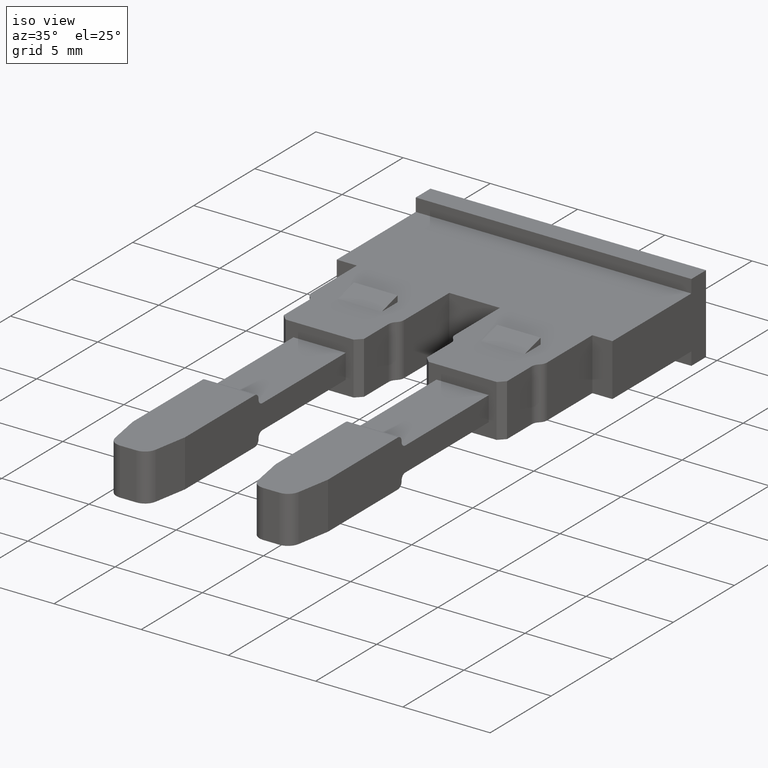
[diagram: clean part render]
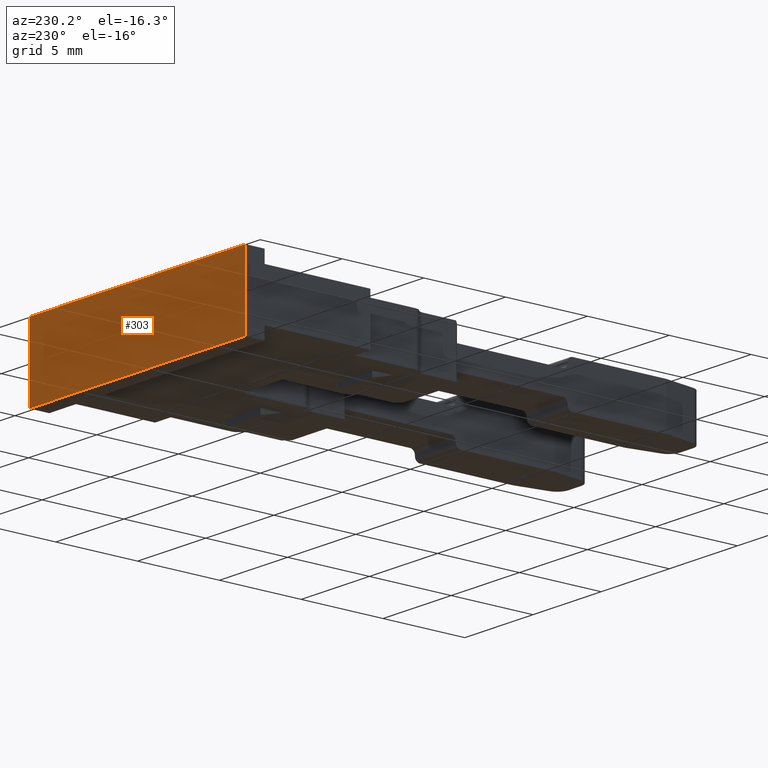
[diagram: tour spotlight — one face highlighted and labeled with its STEP entity id]
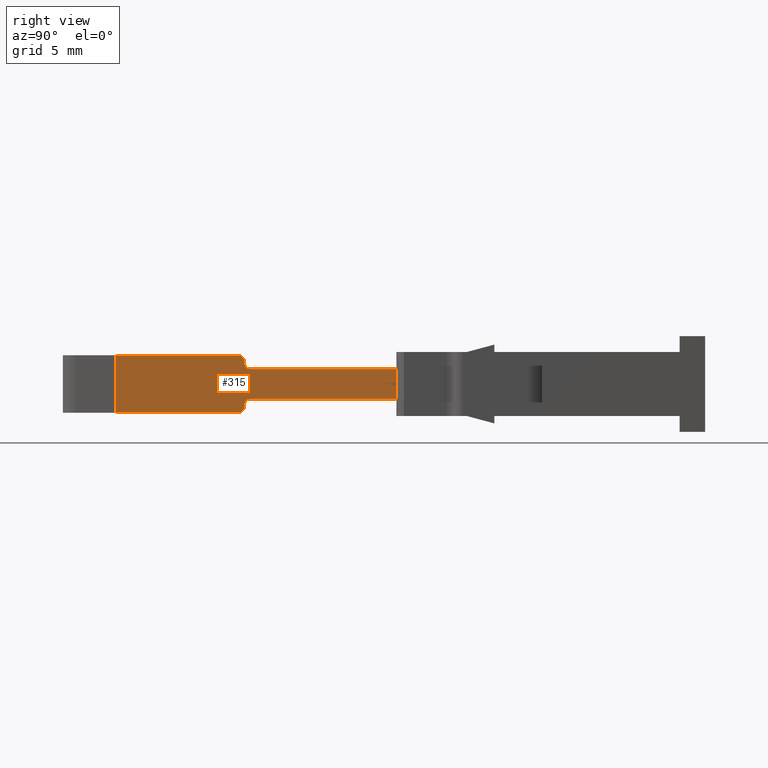
[diagram: tour spotlight — one face highlighted and labeled with its STEP entity id]
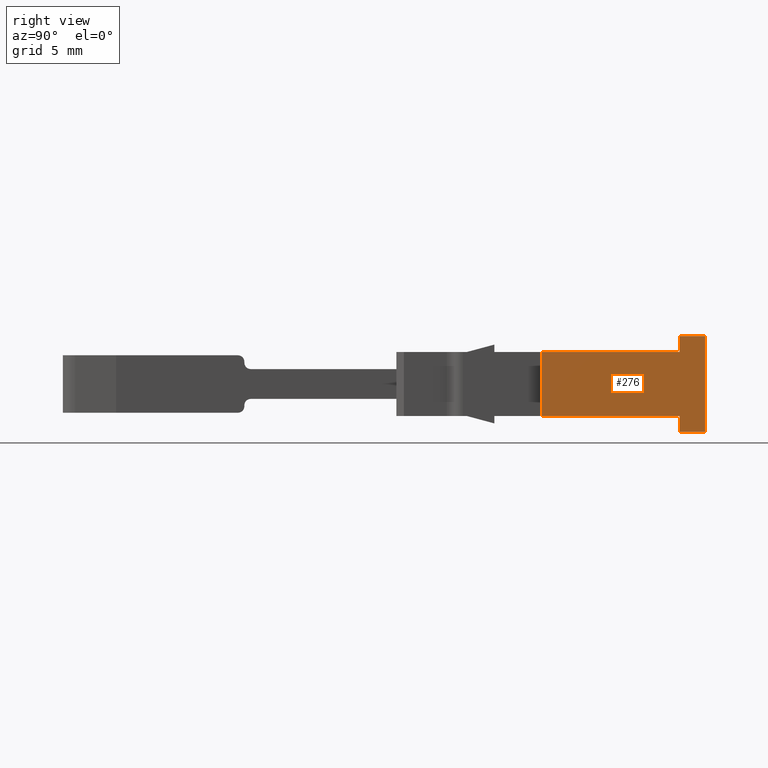
[diagram: tour spotlight — one face highlighted and labeled with its STEP entity id]
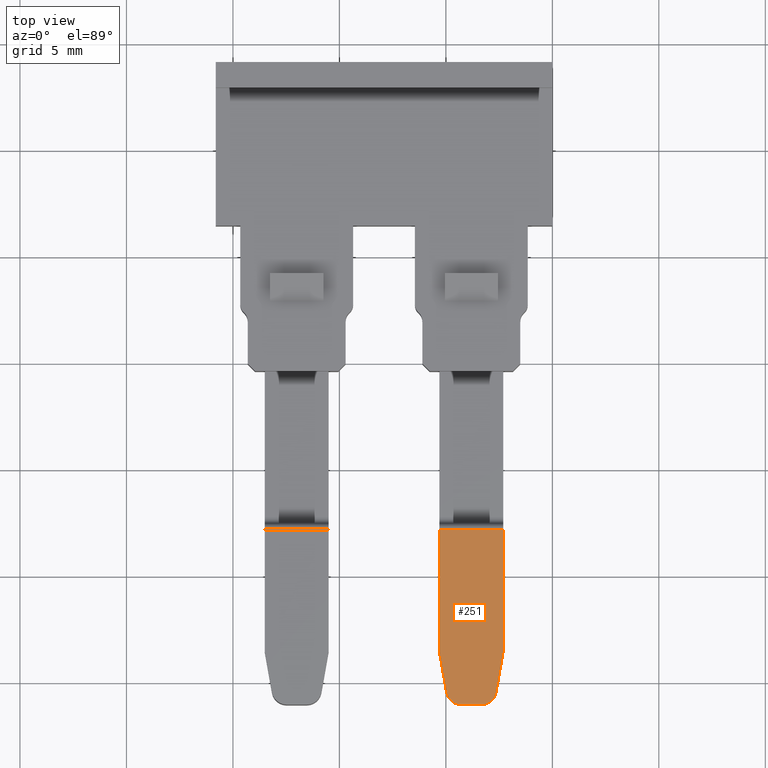
[diagram: tour spotlight — one face highlighted and labeled with its STEP entity id]
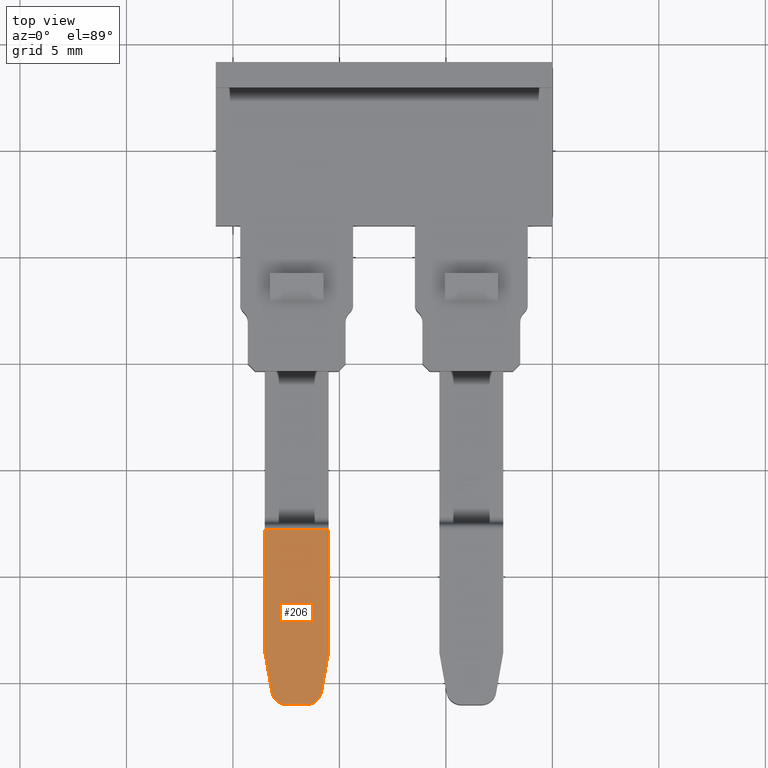
[diagram: tour spotlight — one face highlighted and labeled with its STEP entity id]
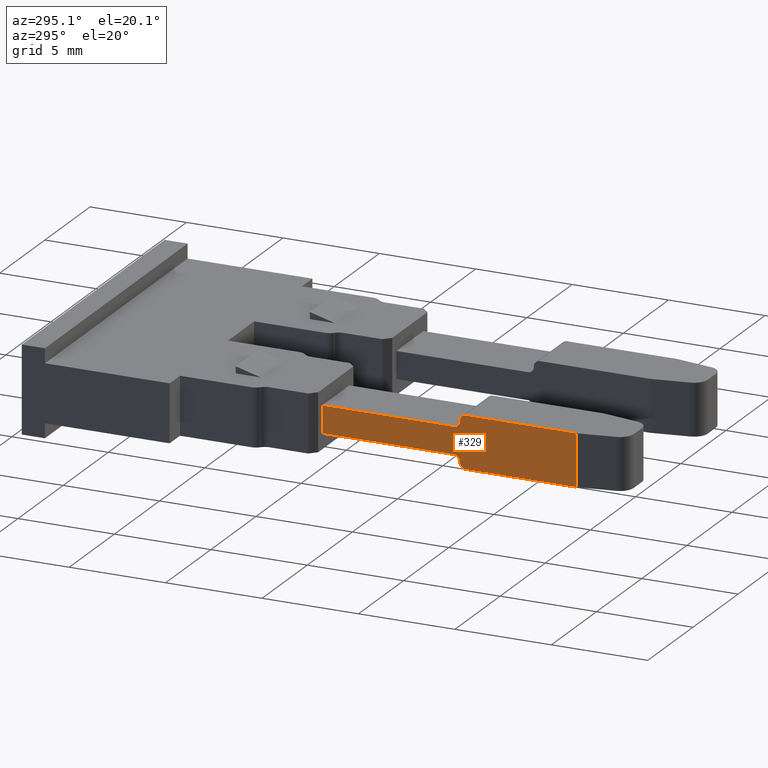
[diagram: tour spotlight — one face highlighted and labeled with its STEP entity id]
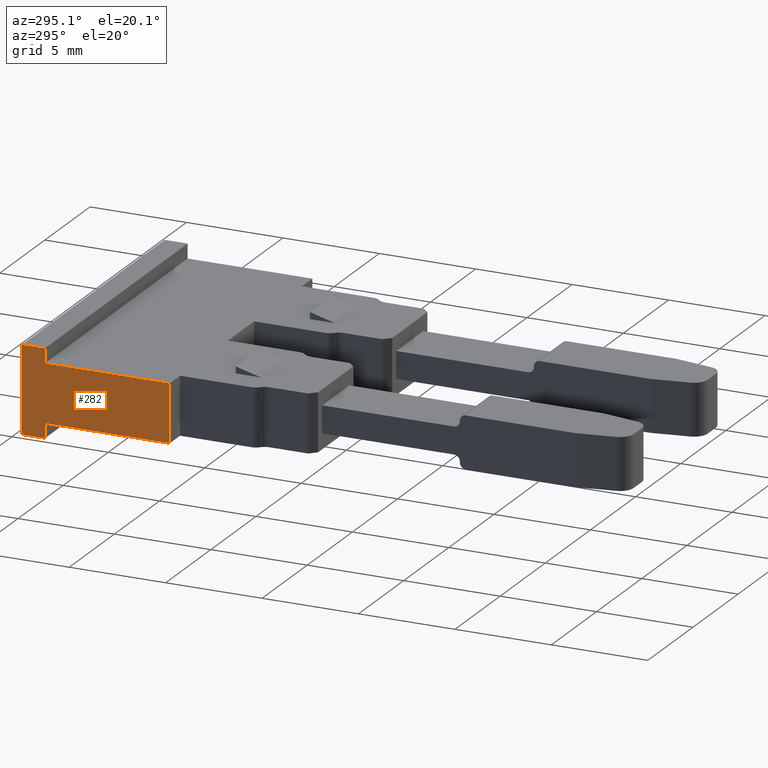
[diagram: tour spotlight — one face highlighted and labeled with its STEP entity id]
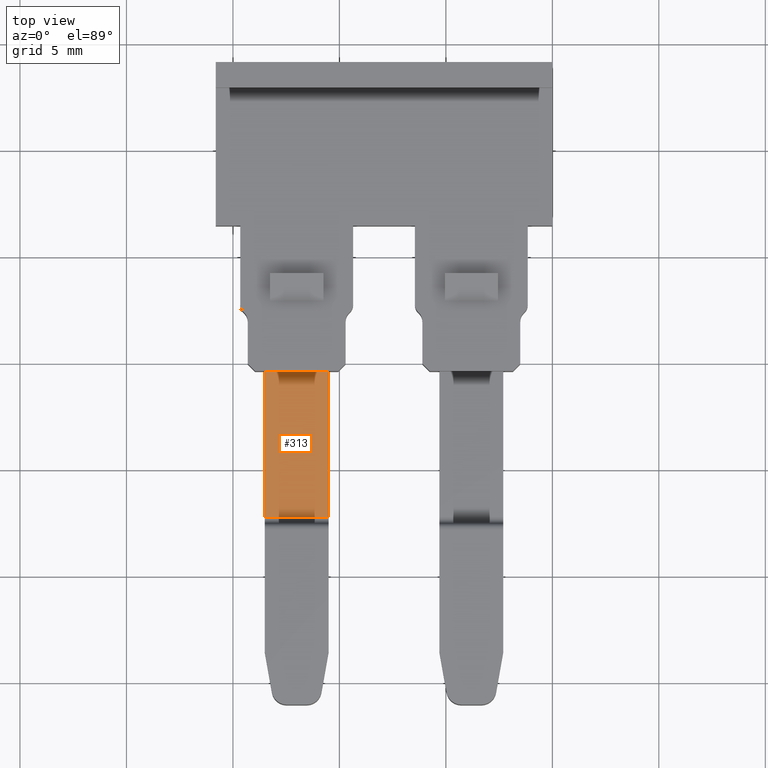
[diagram: tour spotlight — one face highlighted and labeled with its STEP entity id]
A machine part: a face-by-face anatomy tour. The part has 88 B-rep faces; the first image is the clean iso view, then the 8 largest visible faces are spotlighted one at a time (largest first), each with its STEP entity span.

Face 1 — auxiliary view, entity #303. In plain terms, the highlighted planar face has unit normal (0, -1, 0).
Definition (entity closure, byte-faithful):
#86 = EDGE_CURVE ( 'NONE', #2694, #2678, #691, .T. ) ;
#127 = EDGE_CURVE ( 'NONE', #2694, #2636, #850, .T. ) ;
#161 = EDGE_CURVE ( 'NONE', #2639, #2636, #935, .T. ) ;
#181 = EDGE_CURVE ( 'NONE', #2639, #2678, #968, .T. ) ;
#303 = ADVANCED_FACE ( 'NONE', ( #360 ), #344, .F. ) ;
#344 = PLANE ( 'NONE',  #1804 ) ;
#360 = FACE_OUTER_BOUND ( 'NONE', #2531, .T. ) ;
#384 = CARTESIAN_POINT ( 'NONE',  ( 1139.194470802330000, 674.1078760720547500, 3.000000000000000000 ) ) ;
#385 = DIRECTION ( 'NONE',  ( 0.0000000000000000000, -0.0000000000000000000, -1.000000000000000000 ) ) ;
#393 = DIRECTION ( 'NONE',  ( 0.0000000000000000000, -1.000000000000000000, 0.0000000000000000000 ) ) ;
#510 = CARTESIAN_POINT ( 'NONE',  ( 1139.194470802330000, 674.1078760720547500, -0.7499999999999997800 ) ) ;
#550 = CARTESIAN_POINT ( 'NONE',  ( 1154.994472239529600, 674.1078760720547500, -0.7499999999999997800 ) ) ;
#583 = CARTESIAN_POINT ( 'NONE',  ( 1154.994472239529600, 674.1078760720547500, 3.750000000000000000 ) ) ;
#615 = CARTESIAN_POINT ( 'NONE',  ( 1139.194470802330000, 674.1078760720547500, 3.750000000000000000 ) ) ;
#691 = LINE ( 'NONE', #714, #1509 ) ;
#705 = DIRECTION ( 'NONE',  ( -1.000000000000000000, -0.0000000000000000000, -0.0000000000000000000 ) ) ;
#714 = CARTESIAN_POINT ( 'NONE',  ( 1139.194470802330000, 674.1078760720547500, 3.750000000000000000 ) ) ;
#832 = CARTESIAN_POINT ( 'NONE',  ( 1154.994472239529600, 674.1078760720547500, 3.000000000000000000 ) ) ;
#834 = DIRECTION ( 'NONE',  ( -0.0000000000000000000, -0.0000000000000000000, -1.000000000000000000 ) ) ;
#850 = LINE ( 'NONE', #832, #1621 ) ;
#907 = DIRECTION ( 'NONE',  ( 1.000000000000000000, 0.0000000000000000000, 0.0000000000000000000 ) ) ;
#935 = LINE ( 'NONE', #937, #1672 ) ;
#937 = CARTESIAN_POINT ( 'NONE',  ( 1139.194470802330000, 674.1078760720547500, -0.7499999999999997800 ) ) ;
#968 = LINE ( 'NONE', #990, #1652 ) ;
#969 = DIRECTION ( 'NONE',  ( -0.0000000000000000000, -0.0000000000000000000, 1.000000000000000000 ) ) ;
#990 = CARTESIAN_POINT ( 'NONE',  ( 1139.194470802330000, 674.1078760720547500, 3.000000000000000000 ) ) ;
#1509 = VECTOR ( 'NONE', #705, 1000.000000000000000 ) ;
#1621 = VECTOR ( 'NONE', #834, 1000.000000000000000 ) ;
#1652 = VECTOR ( 'NONE', #969, 1000.000000000000000 ) ;
#1672 = VECTOR ( 'NONE', #907, 1000.000000000000000 ) ;
#1804 = AXIS2_PLACEMENT_3D ( 'NONE', #384, #393, #385 ) ;
#2236 = ORIENTED_EDGE ( 'NONE', *, *, #86, .F. ) ;
#2252 = ORIENTED_EDGE ( 'NONE', *, *, #127, .T. ) ;
#2255 = ORIENTED_EDGE ( 'NONE', *, *, #181, .T. ) ;
#2265 = ORIENTED_EDGE ( 'NONE', *, *, #161, .F. ) ;
#2531 = EDGE_LOOP ( 'NONE', ( #2265, #2255, #2236, #2252 ) ) ;
#2636 = VERTEX_POINT ( 'NONE', #550 ) ;
#2639 = VERTEX_POINT ( 'NONE', #510 ) ;
#2678 = VERTEX_POINT ( 'NONE', #615 ) ;
#2694 = VERTEX_POINT ( 'NONE', #583 ) ;

Face 2 — right view, entity #315. In plain terms, the highlighted planar face has unit normal (-1, -0, -0).
Definition (entity closure, byte-faithful):
#6 = EDGE_CURVE ( 'NONE', #2578, #2624, #1487, .T. ) ;
#48 = EDGE_CURVE ( 'NONE', #2690, #2624, #1931, .T. ) ;
#53 = EDGE_CURVE ( 'NONE', #2614, #2584, #1508, .T. ) ;
#89 = EDGE_CURVE ( 'NONE', #2686, #2637, #710, .T. ) ;
#93 = EDGE_CURVE ( 'NONE', #2606, #2690, #1589, .T. ) ;
#103 = EDGE_CURVE ( 'NONE', #2584, #2686, #756, .T. ) ;
#114 = EDGE_CURVE ( 'NONE', #2661, #2585, #1599, .T. ) ;
#117 = EDGE_CURVE ( 'NONE', #2637, #2578, #770, .T. ) ;
#120 = EDGE_CURVE ( 'NONE', #2614, #2661, #782, .T. ) ;
#124 = EDGE_CURVE ( 'NONE', #2585, #2587, #810, .T. ) ;
#125 = EDGE_CURVE ( 'NONE', #2635, #2606, #854, .T. ) ;
#128 = EDGE_CURVE ( 'NONE', #2635, #2587, #773, .T. ) ;
#315 = ADVANCED_FACE ( 'NONE', ( #434 ), #405, .F. ) ;
#405 = PLANE ( 'NONE',  #1796 ) ;
#413 = DIRECTION ( 'NONE',  ( -0.9999999999997435400, -7.162730294145294800E-007, -5.364441115149939300E-014 ) ) ;
#428 = CARTESIAN_POINT ( 'NONE',  ( 1152.694513078971600, 633.9904998856812900, 1.500000000000050400 ) ) ;
#434 = FACE_OUTER_BOUND ( 'NONE', #2530, .T. ) ;
#447 = DIRECTION ( 'NONE',  ( 7.162730294145293700E-007, -0.9999999999997434300, 0.0000000000000000000 ) ) ;
#503 = CARTESIAN_POINT ( 'NONE',  ( 1152.694494728928900, 659.6092820011524500, 2.199999999999997100 ) ) ;
#509 = CARTESIAN_POINT ( 'NONE',  ( 1152.694500057496300, 652.1699856249198300, 2.847804784774985900 ) ) ;
#519 = CARTESIAN_POINT ( 'NONE',  ( 1152.694500057496500, 652.1699856249251800, 0.1522013187407402500 ) ) ;
#525 = CARTESIAN_POINT ( 'NONE',  ( 1152.694497994798000, 659.6092820011524500, 0.8000061035156753600 ) ) ;
#540 = CARTESIAN_POINT ( 'NONE',  ( 1152.694499842614300, 652.4699856249416100, 2.547804784775004700 ) ) ;
#544 = CARTESIAN_POINT ( 'NONE',  ( 1152.694494728928900, 652.7699856250221700, 2.200000000000050400 ) ) ;
#549 = CARTESIAN_POINT ( 'NONE',  ( 1152.694499627732700, 652.7699856249647600, 0.8000061035156751400 ) ) ;
#562 = CARTESIAN_POINT ( 'NONE',  ( 1152.694499842614500, 652.4699856249416100, 0.4522013187406444000 ) ) ;
#564 = CARTESIAN_POINT ( 'NONE',  ( 1152.694502719367600, 646.4455650513607500, 2.847804784775002300 ) ) ;
#577 = CARTESIAN_POINT ( 'NONE',  ( 1152.694502762740300, 646.4455652973382500, 0.1522013187407222600 ) ) ;
#587 = CARTESIAN_POINT ( 'NONE',  ( 1152.694499842614300, 652.4699856249416100, 2.500000000000054200 ) ) ;
#626 = CARTESIAN_POINT ( 'NONE',  ( 1152.694499842614500, 652.4699856249416100, 0.5000061035156794200 ) ) ;
#673 = CARTESIAN_POINT ( 'NONE',  ( 1152.694504157744400, 646.4455650513617700, 1.500000000000050400 ) ) ;
#674 = DIRECTION ( 'NONE',  ( -5.364441115148562900E-014, -3.842404488664303600E-020, 1.000000000000000000 ) ) ;
#692 = DIRECTION ( 'NONE',  ( 7.162729668644273000E-007, -0.9999999999997435400, 0.0000000000000000000 ) ) ;
#696 = CARTESIAN_POINT ( 'NONE',  ( 1152.694499627732500, 652.7699856249647600, 2.500000000000050600 ) ) ;
#701 = DIRECTION ( 'NONE',  ( -0.9999999999997435400, -7.162730294145294800E-007, -5.364441115149939900E-014 ) ) ;
#710 = LINE ( 'NONE', #673, #1601 ) ;
#733 = DIRECTION ( 'NONE',  ( 7.162730294145293700E-007, -0.9999999999997434300, 0.0000000000000000000 ) ) ;
#742 = CARTESIAN_POINT ( 'NONE',  ( 1152.694513078971600, 633.9904998856812900, 0.1522013187407241500 ) ) ;
#756 = LINE ( 'NONE', #742, #1590 ) ;
#768 = CARTESIAN_POINT ( 'NONE',  ( 1152.694499627732700, 641.3475629657206100, 0.8000061035156751400 ) ) ;
#770 = LINE ( 'NONE', #778, #1561 ) ;
#771 = CARTESIAN_POINT ( 'NONE',  ( 1152.694499627732700, 652.7699856249647600, 0.5000061035156752000 ) ) ;
#773 = LINE ( 'NONE', #812, #1562 ) ;
#774 = DIRECTION ( 'NONE',  ( -1.259368144656452000E-037, 1.000000000000000000, 2.347622273454535600E-024 ) ) ;
#778 = CARTESIAN_POINT ( 'NONE',  ( 1152.694513078971600, 633.9904998856812900, 2.847804784775002800 ) ) ;
#782 = LINE ( 'NONE', #806, #1587 ) ;
#784 = DIRECTION ( 'NONE',  ( -7.385219485357330600E-024, -6.294261101327853900E-019, 1.000000000000000000 ) ) ;
#796 = DIRECTION ( 'NONE',  ( -7.162730294145293700E-007, 0.9999999999997434300, -0.0000000000000000000 ) ) ;
#797 = DIRECTION ( 'NONE',  ( -0.9999999999997435400, -7.162730294145294800E-007, -5.364441115149939900E-014 ) ) ;
#804 = DIRECTION ( 'NONE',  ( 7.162729668644273000E-007, -0.9999999999997435400, 0.0000000000000000000 ) ) ;
#806 = CARTESIAN_POINT ( 'NONE',  ( 1152.694499842614500, 652.4699856249416100, -8.884767489098056400 ) ) ;
#810 = LINE ( 'NONE', #768, #1575 ) ;
#812 = CARTESIAN_POINT ( 'NONE',  ( 1152.694494728928900, 659.6092820011524500, 1.500000000000050400 ) ) ;
#822 = CARTESIAN_POINT ( 'NONE',  ( 1152.694494728928900, 641.3475629657206100, 2.200000000000050400 ) ) ;
#826 = DIRECTION ( 'NONE',  ( 1.259368144656452000E-037, -1.000000000000000000, -2.347622273454535600E-024 ) ) ;
#835 = DIRECTION ( 'NONE',  ( 5.364441115148562900E-014, 3.842404488664303600E-020, -1.000000000000000000 ) ) ;
#854 = LINE ( 'NONE', #822, #1620 ) ;
#1453 = AXIS2_PLACEMENT_3D ( 'NONE', #2776, #2757, #2797 ) ;
#1487 = CIRCLE ( 'NONE', #1453, 0.2999999999999328800 ) ;
#1508 = CIRCLE ( 'NONE', #1521, 0.2999999999999328800 ) ;
#1521 = AXIS2_PLACEMENT_3D ( 'NONE', #1976, #2001, #1992 ) ;
#1559 = VECTOR ( 'NONE', #1969, 1000.000000000000000 ) ;
#1561 = VECTOR ( 'NONE', #796, 1000.000000000000100 ) ;
#1562 = VECTOR ( 'NONE', #835, 1000.000000000000000 ) ;
#1575 = VECTOR ( 'NONE', #774, 1000.000000000000000 ) ;
#1587 = VECTOR ( 'NONE', #784, 1000.000000000000000 ) ;
#1589 = CIRCLE ( 'NONE', #1605, 0.3000000000000439000 ) ;
#1590 = VECTOR ( 'NONE', #733, 1000.000000000000100 ) ;
#1599 = CIRCLE ( 'NONE', #1616, 0.3000000000000439000 ) ;
#1601 = VECTOR ( 'NONE', #674, 1000.000000000000000 ) ;
#1605 = AXIS2_PLACEMENT_3D ( 'NONE', #696, #701, #692 ) ;
#1616 = AXIS2_PLACEMENT_3D ( 'NONE', #771, #797, #804 ) ;
#1620 = VECTOR ( 'NONE', #826, 1000.000000000000000 ) ;
#1796 = AXIS2_PLACEMENT_3D ( 'NONE', #428, #413, #447 ) ;
#1931 = LINE ( 'NONE', #1933, #1559 ) ;
#1933 = CARTESIAN_POINT ( 'NONE',  ( 1152.694499842614300, 652.4699856249416100, -8.894767489098054400 ) ) ;
#1969 = DIRECTION ( 'NONE',  ( -7.385219485357330600E-024, -6.294261101327853900E-019, 1.000000000000000000 ) ) ;
#1976 = CARTESIAN_POINT ( 'NONE',  ( 1152.694500057496500, 652.1699856249185800, 0.4522013187407238300 ) ) ;
#1992 = DIRECTION ( 'NONE',  ( 7.162729668646924300E-007, -0.9999999999997435400, 0.0000000000000000000 ) ) ;
#2001 = DIRECTION ( 'NONE',  ( -0.9999999999997435400, -7.162730294145294800E-007, -5.364441115149939900E-014 ) ) ;
#2094 = ORIENTED_EDGE ( 'NONE', *, *, #93, .T. ) ;
#2152 = ORIENTED_EDGE ( 'NONE', *, *, #89, .F. ) ;
#2155 = ORIENTED_EDGE ( 'NONE', *, *, #114, .T. ) ;
#2167 = ORIENTED_EDGE ( 'NONE', *, *, #128, .F. ) ;
#2168 = ORIENTED_EDGE ( 'NONE', *, *, #6, .F. ) ;
#2181 = ORIENTED_EDGE ( 'NONE', *, *, #53, .F. ) ;
#2182 = ORIENTED_EDGE ( 'NONE', *, *, #103, .F. ) ;
#2183 = ORIENTED_EDGE ( 'NONE', *, *, #120, .T. ) ;
#2187 = ORIENTED_EDGE ( 'NONE', *, *, #124, .T. ) ;
#2189 = ORIENTED_EDGE ( 'NONE', *, *, #48, .T. ) ;
#2194 = ORIENTED_EDGE ( 'NONE', *, *, #125, .T. ) ;
#2199 = ORIENTED_EDGE ( 'NONE', *, *, #117, .F. ) ;
#2530 = EDGE_LOOP ( 'NONE', ( #2168, #2199, #2152, #2182, #2181, #2183, #2155, #2187, #2167, #2194, #2094, #2189 ) ) ;
#2578 = VERTEX_POINT ( 'NONE', #509 ) ;
#2584 = VERTEX_POINT ( 'NONE', #519 ) ;
#2585 = VERTEX_POINT ( 'NONE', #549 ) ;
#2587 = VERTEX_POINT ( 'NONE', #525 ) ;
#2606 = VERTEX_POINT ( 'NONE', #544 ) ;
#2614 = VERTEX_POINT ( 'NONE', #562 ) ;
#2624 = VERTEX_POINT ( 'NONE', #540 ) ;
#2635 = VERTEX_POINT ( 'NONE', #503 ) ;
#2637 = VERTEX_POINT ( 'NONE', #564 ) ;
#2661 = VERTEX_POINT ( 'NONE', #626 ) ;
#2686 = VERTEX_POINT ( 'NONE', #577 ) ;
#2690 = VERTEX_POINT ( 'NONE', #587 ) ;
#2757 = DIRECTION ( 'NONE',  ( -0.9999999999997435400, -7.162730294145294800E-007, -5.364441115149939900E-014 ) ) ;
#2776 = CARTESIAN_POINT ( 'NONE',  ( 1152.694500057496300, 652.1699856249184700, 2.547804784775002100 ) ) ;
#2797 = DIRECTION ( 'NONE',  ( 7.162729668646924300E-007, -0.9999999999997435400, 0.0000000000000000000 ) ) ;

Face 3 — right view, entity #276. In plain terms, the highlighted planar face has unit normal (-1, 0, 0).
Definition (entity closure, byte-faithful):
#90 = EDGE_CURVE ( 'NONE', #2677, #2694, #675, .T. ) ;
#127 = EDGE_CURVE ( 'NONE', #2694, #2636, #850, .T. ) ;
#139 = EDGE_CURVE ( 'NONE', #2679, #2717, #845, .T. ) ;
#164 = EDGE_CURVE ( 'NONE', #2636, #2732, #932, .T. ) ;
#177 = EDGE_CURVE ( 'NONE', #2667, #2677, #976, .T. ) ;
#203 = EDGE_CURVE ( 'NONE', #2717, #2667, #1044, .T. ) ;
#244 = EDGE_CURVE ( 'NONE', #2732, #2728, #1215, .T. ) ;
#256 = EDGE_CURVE ( 'NONE', #2679, #2728, #1240, .T. ) ;
#276 = ADVANCED_FACE ( 'NONE', ( #1325 ), #1310, .F. ) ;
#550 = CARTESIAN_POINT ( 'NONE',  ( 1154.994472239529600, 674.1078760720547500, -0.7499999999999997800 ) ) ;
#567 = CARTESIAN_POINT ( 'NONE',  ( 1154.994472239529600, 666.4412575163982000, 0.0000000000000000000 ) ) ;
#583 = CARTESIAN_POINT ( 'NONE',  ( 1154.994472239529600, 674.1078760720547500, 3.750000000000000000 ) ) ;
#595 = CARTESIAN_POINT ( 'NONE',  ( 1154.994472239529600, 672.9078760720548200, 3.000000000000000000 ) ) ;
#598 = CARTESIAN_POINT ( 'NONE',  ( 1154.994472239529600, 672.9078760720548200, 3.750000000000000000 ) ) ;
#675 = LINE ( 'NONE', #676, #1598 ) ;
#676 = CARTESIAN_POINT ( 'NONE',  ( 1154.994472239529600, 672.9078760720548200, 3.750000000000000000 ) ) ;
#684 = DIRECTION ( 'NONE',  ( -0.0000000000000000000, 1.000000000000000000, 0.0000000000000000000 ) ) ;
#832 = CARTESIAN_POINT ( 'NONE',  ( 1154.994472239529600, 674.1078760720547500, 3.000000000000000000 ) ) ;
#834 = DIRECTION ( 'NONE',  ( -0.0000000000000000000, -0.0000000000000000000, -1.000000000000000000 ) ) ;
#845 = LINE ( 'NONE', #851, #1577 ) ;
#850 = LINE ( 'NONE', #832, #1621 ) ;
#851 = CARTESIAN_POINT ( 'NONE',  ( 1154.994472239529600, 666.4412575163982000, 3.000000000000000000 ) ) ;
#852 = DIRECTION ( 'NONE',  ( 0.0000000000000000000, 0.0000000000000000000, 1.000000000000000000 ) ) ;
#927 = CARTESIAN_POINT ( 'NONE',  ( 1154.994472239529600, 674.1078760720547500, -0.7499999999999997800 ) ) ;
#932 = LINE ( 'NONE', #927, #1666 ) ;
#939 = DIRECTION ( 'NONE',  ( -0.0000000000000000000, -1.000000000000000000, 0.0000000000000000000 ) ) ;
#949 = CARTESIAN_POINT ( 'NONE',  ( 1154.994472239529600, 672.9078760720548200, -0.7499999999999997800 ) ) ;
#962 = DIRECTION ( 'NONE',  ( -0.0000000000000000000, 0.0000000000000000000, 1.000000000000000000 ) ) ;
#976 = LINE ( 'NONE', #949, #1661 ) ;
#1044 = LINE ( 'NONE', #1045, #1702 ) ;
#1045 = CARTESIAN_POINT ( 'NONE',  ( 1154.994472239529600, 674.1078760720547500, 3.000000000000000000 ) ) ;
#1069 = DIRECTION ( 'NONE',  ( 0.0000000000000000000, 1.000000000000000000, -0.0000000000000000000 ) ) ;
#1195 = CARTESIAN_POINT ( 'NONE',  ( 1154.994472239529600, 662.7578638201010800, 0.0000000000000000000 ) ) ;
#1210 = CARTESIAN_POINT ( 'NONE',  ( 1154.994472239529600, 672.9078760720548200, -0.7499999999999997800 ) ) ;
#1215 = LINE ( 'NONE', #1210, #1744 ) ;
#1239 = DIRECTION ( 'NONE',  ( -0.0000000000000000000, 0.0000000000000000000, 1.000000000000000000 ) ) ;
#1240 = LINE ( 'NONE', #1195, #1692 ) ;
#1241 = DIRECTION ( 'NONE',  ( -0.0000000000000000000, 1.000000000000000000, 0.0000000000000000000 ) ) ;
#1257 = CARTESIAN_POINT ( 'NONE',  ( 1154.994472239529600, 666.4412575163982000, 3.000000000000000000 ) ) ;
#1310 = PLANE ( 'NONE',  #1777 ) ;
#1321 = DIRECTION ( 'NONE',  ( 0.0000000000000000000, 0.0000000000000000000, 1.000000000000000000 ) ) ;
#1324 = CARTESIAN_POINT ( 'NONE',  ( 1154.994472239529600, 674.1078760720547500, 3.000000000000000000 ) ) ;
#1325 = FACE_OUTER_BOUND ( 'NONE', #2506, .T. ) ;
#1328 = DIRECTION ( 'NONE',  ( -1.000000000000000000, 0.0000000000000000000, 0.0000000000000000000 ) ) ;
#1577 = VECTOR ( 'NONE', #852, 1000.000000000000000 ) ;
#1598 = VECTOR ( 'NONE', #684, 1000.000000000000000 ) ;
#1621 = VECTOR ( 'NONE', #834, 1000.000000000000000 ) ;
#1661 = VECTOR ( 'NONE', #962, 1000.000000000000000 ) ;
#1666 = VECTOR ( 'NONE', #939, 1000.000000000000000 ) ;
#1692 = VECTOR ( 'NONE', #1241, 1000.000000000000000 ) ;
#1702 = VECTOR ( 'NONE', #1069, 1000.000000000000000 ) ;
#1744 = VECTOR ( 'NONE', #1239, 1000.000000000000000 ) ;
#1777 = AXIS2_PLACEMENT_3D ( 'NONE', #1324, #1328, #1321 ) ;
#1842 = CARTESIAN_POINT ( 'NONE',  ( 1154.994472239529600, 672.9078760720548200, -0.7499999999999997800 ) ) ;
#1868 = CARTESIAN_POINT ( 'NONE',  ( 1154.994472239529600, 672.9078760720548200, 0.0000000000000000000 ) ) ;
#2276 = ORIENTED_EDGE ( 'NONE', *, *, #177, .F. ) ;
#2350 = ORIENTED_EDGE ( 'NONE', *, *, #244, .F. ) ;
#2360 = ORIENTED_EDGE ( 'NONE', *, *, #127, .F. ) ;
#2367 = ORIENTED_EDGE ( 'NONE', *, *, #203, .F. ) ;
#2368 = ORIENTED_EDGE ( 'NONE', *, *, #256, .T. ) ;
#2370 = ORIENTED_EDGE ( 'NONE', *, *, #164, .F. ) ;
#2376 = ORIENTED_EDGE ( 'NONE', *, *, #139, .F. ) ;
#2388 = ORIENTED_EDGE ( 'NONE', *, *, #90, .F. ) ;
#2506 = EDGE_LOOP ( 'NONE', ( #2350, #2370, #2360, #2388, #2276, #2367, #2376, #2368 ) ) ;
#2636 = VERTEX_POINT ( 'NONE', #550 ) ;
#2667 = VERTEX_POINT ( 'NONE', #595 ) ;
#2677 = VERTEX_POINT ( 'NONE', #598 ) ;
#2679 = VERTEX_POINT ( 'NONE', #567 ) ;
#2694 = VERTEX_POINT ( 'NONE', #583 ) ;
#2717 = VERTEX_POINT ( 'NONE', #1257 ) ;
#2728 = VERTEX_POINT ( 'NONE', #1868 ) ;
#2732 = VERTEX_POINT ( 'NONE', #1842 ) ;

Face 4 — top view, entity #251. In plain terms, the highlighted planar face has unit normal (-0, -0, 1).
Definition (entity closure, byte-faithful):
#13 = EDGE_CURVE ( 'NONE', #2628, #2625, #2763, .T. ) ;
#15 = EDGE_CURVE ( 'NONE', #2603, #2625, #1479, .T. ) ;
#20 = EDGE_CURVE ( 'NONE', #2628, #2632, #1456, .T. ) ;
#33 = EDGE_CURVE ( 'NONE', #2578, #2594, #1929, .T. ) ;
#50 = EDGE_CURVE ( 'NONE', #2658, #2632, #1984, .T. ) ;
#74 = EDGE_CURVE ( 'NONE', #2603, #2637, #666, .T. ) ;
#79 = EDGE_CURVE ( 'NONE', #2594, #2658, #655, .T. ) ;
#117 = EDGE_CURVE ( 'NONE', #2637, #2578, #770, .T. ) ;
#251 = ADVANCED_FACE ( 'NONE', ( #1220 ), #1208, .T. ) ;
#509 = CARTESIAN_POINT ( 'NONE',  ( 1152.694500057496300, 652.1699856249198300, 2.847804784774985900 ) ) ;
#522 = CARTESIAN_POINT ( 'NONE',  ( 1152.355674310466600, 644.5239867421933000, 2.847804784774984100 ) ) ;
#537 = CARTESIAN_POINT ( 'NONE',  ( 1151.666308848431300, 643.9455402684817500, 2.847804784774921500 ) ) ;
#542 = CARTESIAN_POINT ( 'NONE',  ( 1150.722684756973400, 643.9455402684817500, 2.847804784774896200 ) ) ;
#548 = CARTESIAN_POINT ( 'NONE',  ( 1150.033319294938300, 644.5239867421933000, 2.847804784774859800 ) ) ;
#554 = CARTESIAN_POINT ( 'NONE',  ( 1149.694493787257900, 652.1700208247740400, 2.847804784774824700 ) ) ;
#564 = CARTESIAN_POINT ( 'NONE',  ( 1152.694502719367600, 646.4455650513607500, 2.847804784775002300 ) ) ;
#582 = CARTESIAN_POINT ( 'NONE',  ( 1149.694494254129000, 646.4455650513584700, 2.847804784774840700 ) ) ;
#650 = CARTESIAN_POINT ( 'NONE',  ( 1152.355674310466600, 644.5239867421933000, 2.847804784774983700 ) ) ;
#655 = LINE ( 'NONE', #699, #1550 ) ;
#662 = DIRECTION ( 'NONE',  ( 0.1736478946976743900, 0.9848078029072806500, 9.334970462687131000E-015 ) ) ;
#666 = LINE ( 'NONE', #650, #1538 ) ;
#697 = DIRECTION ( 'NONE',  ( 8.155722747765769100E-008, -0.9999999999999966700, -0.0000000000000000000 ) ) ;
#699 = CARTESIAN_POINT ( 'NONE',  ( 1149.694495269929800, 633.9904964572250500, 2.847804784774841100 ) ) ;
#770 = LINE ( 'NONE', #778, #1561 ) ;
#778 = CARTESIAN_POINT ( 'NONE',  ( 1152.694513078971600, 633.9904998856812900, 2.847804784775002800 ) ) ;
#796 = DIRECTION ( 'NONE',  ( -7.162730294145293700E-007, 0.9999999999997434300, -0.0000000000000000000 ) ) ;
#1198 = CARTESIAN_POINT ( 'NONE',  ( 1153.694489309877600, 641.3475629657206100, 2.847804784775055600 ) ) ;
#1208 = PLANE ( 'NONE',  #1709 ) ;
#1211 = DIRECTION ( 'NONE',  ( -5.364441115151317600E-014, -2.347622273454535600E-024, 1.000000000000000000 ) ) ;
#1220 = FACE_OUTER_BOUND ( 'NONE', #2518, .T. ) ;
#1230 = DIRECTION ( 'NONE',  ( 1.000000000000000000, 0.0000000000000000000, 5.364441115151317600E-014 ) ) ;
#1451 = AXIS2_PLACEMENT_3D ( 'NONE', #2813, #2825, #2815 ) ;
#1456 = CIRCLE ( 'NONE', #1451, 0.6999999999999229100 ) ;
#1458 = AXIS2_PLACEMENT_3D ( 'NONE', #2766, #2779, #2780 ) ;
#1479 = CIRCLE ( 'NONE', #1458, 0.7000000000001449500 ) ;
#1496 = VECTOR ( 'NONE', #2762, 1000.000000000000000 ) ;
#1499 = VECTOR ( 'NONE', #1954, 1000.000000000000100 ) ;
#1538 = VECTOR ( 'NONE', #662, 1000.000000000000100 ) ;
#1541 = VECTOR ( 'NONE', #1971, 1000.000000000000200 ) ;
#1550 = VECTOR ( 'NONE', #697, 1000.000000000000100 ) ;
#1561 = VECTOR ( 'NONE', #796, 1000.000000000000100 ) ;
#1709 = AXIS2_PLACEMENT_3D ( 'NONE', #1198, #1211, #1230 ) ;
#1929 = LINE ( 'NONE', #1930, #1499 ) ;
#1930 = CARTESIAN_POINT ( 'NONE',  ( 1152.694499842614300, 652.1699856249209700, 2.847804784775001900 ) ) ;
#1954 = DIRECTION ( 'NONE',  ( -0.9999999999311652800, 1.173325886225305400E-005, -5.363175877137947600E-014 ) ) ;
#1971 = DIRECTION ( 'NONE',  ( 0.1736478946976841300, -0.9848078029072788700, 9.334970462687653300E-015 ) ) ;
#1984 = LINE ( 'NONE', #1985, #1541 ) ;
#1985 = CARTESIAN_POINT ( 'NONE',  ( 1149.694493762790700, 646.4455650513584700, 2.847804784774840700 ) ) ;
#2035 = ORIENTED_EDGE ( 'NONE', *, *, #50, .T. ) ;
#2051 = ORIENTED_EDGE ( 'NONE', *, *, #20, .F. ) ;
#2055 = ORIENTED_EDGE ( 'NONE', *, *, #33, .T. ) ;
#2077 = ORIENTED_EDGE ( 'NONE', *, *, #15, .F. ) ;
#2082 = ORIENTED_EDGE ( 'NONE', *, *, #74, .T. ) ;
#2099 = ORIENTED_EDGE ( 'NONE', *, *, #79, .T. ) ;
#2114 = ORIENTED_EDGE ( 'NONE', *, *, #117, .T. ) ;
#2136 = ORIENTED_EDGE ( 'NONE', *, *, #13, .T. ) ;
#2518 = EDGE_LOOP ( 'NONE', ( #2077, #2082, #2114, #2055, #2099, #2035, #2051, #2136 ) ) ;
#2578 = VERTEX_POINT ( 'NONE', #509 ) ;
#2594 = VERTEX_POINT ( 'NONE', #554 ) ;
#2603 = VERTEX_POINT ( 'NONE', #522 ) ;
#2625 = VERTEX_POINT ( 'NONE', #537 ) ;
#2628 = VERTEX_POINT ( 'NONE', #542 ) ;
#2632 = VERTEX_POINT ( 'NONE', #548 ) ;
#2637 = VERTEX_POINT ( 'NONE', #564 ) ;
#2658 = VERTEX_POINT ( 'NONE', #582 ) ;
#2761 = CARTESIAN_POINT ( 'NONE',  ( 1142.807449967277800, 643.9455402684813000, 2.847804784774895700 ) ) ;
#2762 = DIRECTION ( 'NONE',  ( 1.000000000000000000, 5.361227742878434600E-014, -0.0000000000000000000 ) ) ;
#2763 = LINE ( 'NONE', #2761, #1496 ) ;
#2766 = CARTESIAN_POINT ( 'NONE',  ( 1151.666308848431300, 644.6455402684818000, 2.847804784774946800 ) ) ;
#2779 = DIRECTION ( 'NONE',  ( 5.364441115151317600E-014, 2.347622273454535600E-024, -1.000000000000000000 ) ) ;
#2780 = DIRECTION ( 'NONE',  ( 1.000000000000000000, 0.0000000000000000000, 5.390033657498248700E-014 ) ) ;
#2813 = CARTESIAN_POINT ( 'NONE',  ( 1150.722684756973400, 644.6455402684818000, 2.847804784774896200 ) ) ;
#2815 = DIRECTION ( 'NONE',  ( 1.000000000000000000, 0.0000000000000000000, 5.390033657499958300E-014 ) ) ;
#2825 = DIRECTION ( 'NONE',  ( 5.364441115151317600E-014, 2.347622273454535600E-024, -1.000000000000000000 ) ) ;

Face 5 — top view, entity #206. In plain terms, the highlighted planar face has unit normal (-0, -0, 1).
Definition (entity closure, byte-faithful):
#1 = EDGE_CURVE ( 'NONE', #2570, #2589, #1460, .T. ) ;
#3 = EDGE_CURVE ( 'NONE', #2597, #2656, #1484, .T. ) ;
#9 = EDGE_CURVE ( 'NONE', #2597, #2589, #2787, .T. ) ;
#31 = EDGE_CURVE ( 'NONE', #2579, #2651, #2818, .T. ) ;
#84 = EDGE_CURVE ( 'NONE', #2668, #2579, #679, .T. ) ;
#91 = EDGE_CURVE ( 'NONE', #2570, #2668, #713, .T. ) ;
#108 = EDGE_CURVE ( 'NONE', #2651, #2689, #731, .T. ) ;
#126 = EDGE_CURVE ( 'NONE', #2689, #2656, #816, .T. ) ;
#206 = ADVANCED_FACE ( 'NONE', ( #1048 ), #1061, .T. ) ;
#514 = CARTESIAN_POINT ( 'NONE',  ( 1144.494500057496700, 652.1699856249198300, 2.847804784774985900 ) ) ;
#531 = CARTESIAN_POINT ( 'NONE',  ( 1144.155674310466600, 644.5239867421933000, 2.847804784774984100 ) ) ;
#532 = CARTESIAN_POINT ( 'NONE',  ( 1143.466308848431300, 643.9455402684817500, 2.847804784774921500 ) ) ;
#546 = CARTESIAN_POINT ( 'NONE',  ( 1142.522684756973400, 643.9455402684817500, 2.847804784774896200 ) ) ;
#573 = CARTESIAN_POINT ( 'NONE',  ( 1144.494502719368000, 646.4455650513607500, 2.847804784775002300 ) ) ;
#605 = CARTESIAN_POINT ( 'NONE',  ( 1141.494493787258100, 652.1700208247740400, 2.847804784774824700 ) ) ;
#617 = CARTESIAN_POINT ( 'NONE',  ( 1141.494494254129000, 646.4455650513584700, 2.847804784774840700 ) ) ;
#622 = CARTESIAN_POINT ( 'NONE',  ( 1141.833319294938300, 644.5239867421933000, 2.847804784774859800 ) ) ;
#672 = CARTESIAN_POINT ( 'NONE',  ( 1144.155674310466600, 644.5239867421933000, 2.847804784774983700 ) ) ;
#679 = LINE ( 'NONE', #715, #1551 ) ;
#695 = DIRECTION ( 'NONE',  ( 0.1736478946976743900, 0.9848078029072806500, 9.334970462687131000E-015 ) ) ;
#713 = LINE ( 'NONE', #672, #1603 ) ;
#715 = CARTESIAN_POINT ( 'NONE',  ( 1144.494513078972000, 633.9904998856812900, 2.847804784775002800 ) ) ;
#717 = DIRECTION ( 'NONE',  ( -7.162730294145293700E-007, 0.9999999999997434300, -0.0000000000000000000 ) ) ;
#722 = DIRECTION ( 'NONE',  ( 8.155722747765769100E-008, -0.9999999999999966700, -0.0000000000000000000 ) ) ;
#731 = LINE ( 'NONE', #762, #1582 ) ;
#762 = CARTESIAN_POINT ( 'NONE',  ( 1141.494495269929800, 633.9904964572250500, 2.847804784774841100 ) ) ;
#816 = LINE ( 'NONE', #840, #1593 ) ;
#839 = DIRECTION ( 'NONE',  ( 0.1736478946976841300, -0.9848078029072788700, 9.334970462687653300E-015 ) ) ;
#840 = CARTESIAN_POINT ( 'NONE',  ( 1141.494493762790600, 646.4455650513584700, 2.847804784774840700 ) ) ;
#1048 = FACE_OUTER_BOUND ( 'NONE', #2551, .T. ) ;
#1051 = CARTESIAN_POINT ( 'NONE',  ( 1145.494489309877500, 641.3475629657206100, 2.847804784775055600 ) ) ;
#1061 = PLANE ( 'NONE',  #1742 ) ;
#1073 = DIRECTION ( 'NONE',  ( 1.000000000000000000, 0.0000000000000000000, 5.364441115151317600E-014 ) ) ;
#1075 = DIRECTION ( 'NONE',  ( -5.364441115151317600E-014, -2.347622273454535600E-024, 1.000000000000000000 ) ) ;
#1460 = CIRCLE ( 'NONE', #1493, 0.7000000000001449500 ) ;
#1465 = VECTOR ( 'NONE', #1945, 1000.000000000000100 ) ;
#1468 = AXIS2_PLACEMENT_3D ( 'NONE', #2792, #2801, #2799 ) ;
#1484 = CIRCLE ( 'NONE', #1468, 0.6999999999999229100 ) ;
#1492 = VECTOR ( 'NONE', #2785, 1000.000000000000000 ) ;
#1493 = AXIS2_PLACEMENT_3D ( 'NONE', #2709, #2714, #2715 ) ;
#1551 = VECTOR ( 'NONE', #717, 1000.000000000000100 ) ;
#1582 = VECTOR ( 'NONE', #722, 1000.000000000000100 ) ;
#1593 = VECTOR ( 'NONE', #839, 1000.000000000000200 ) ;
#1603 = VECTOR ( 'NONE', #695, 1000.000000000000100 ) ;
#1742 = AXIS2_PLACEMENT_3D ( 'NONE', #1051, #1075, #1073 ) ;
#1945 = DIRECTION ( 'NONE',  ( -0.9999999999311652800, 1.173325886225305400E-005, -5.363175877137947600E-014 ) ) ;
#2074 = ORIENTED_EDGE ( 'NONE', *, *, #3, .F. ) ;
#2075 = ORIENTED_EDGE ( 'NONE', *, *, #9, .T. ) ;
#2088 = ORIENTED_EDGE ( 'NONE', *, *, #31, .T. ) ;
#2110 = ORIENTED_EDGE ( 'NONE', *, *, #91, .T. ) ;
#2112 = ORIENTED_EDGE ( 'NONE', *, *, #108, .T. ) ;
#2117 = ORIENTED_EDGE ( 'NONE', *, *, #1, .F. ) ;
#2134 = ORIENTED_EDGE ( 'NONE', *, *, #84, .T. ) ;
#2135 = ORIENTED_EDGE ( 'NONE', *, *, #126, .T. ) ;
#2551 = EDGE_LOOP ( 'NONE', ( #2117, #2110, #2134, #2088, #2112, #2135, #2074, #2075 ) ) ;
#2570 = VERTEX_POINT ( 'NONE', #531 ) ;
#2579 = VERTEX_POINT ( 'NONE', #514 ) ;
#2589 = VERTEX_POINT ( 'NONE', #532 ) ;
#2597 = VERTEX_POINT ( 'NONE', #546 ) ;
#2651 = VERTEX_POINT ( 'NONE', #605 ) ;
#2656 = VERTEX_POINT ( 'NONE', #622 ) ;
#2668 = VERTEX_POINT ( 'NONE', #573 ) ;
#2689 = VERTEX_POINT ( 'NONE', #617 ) ;
#2709 = CARTESIAN_POINT ( 'NONE',  ( 1143.466308848431300, 644.6455402684818000, 2.847804784774946800 ) ) ;
#2714 = DIRECTION ( 'NONE',  ( 5.364441115151317600E-014, 2.347622273454535600E-024, -1.000000000000000000 ) ) ;
#2715 = DIRECTION ( 'NONE',  ( 1.000000000000000000, 0.0000000000000000000, 5.390033657498248700E-014 ) ) ;
#2785 = DIRECTION ( 'NONE',  ( 1.000000000000000000, 5.361227742878434600E-014, -0.0000000000000000000 ) ) ;
#2787 = LINE ( 'NONE', #2788, #1492 ) ;
#2788 = CARTESIAN_POINT ( 'NONE',  ( 1134.607449967277700, 643.9455402684813000, 2.847804784774895700 ) ) ;
#2792 = CARTESIAN_POINT ( 'NONE',  ( 1142.522684756973400, 644.6455402684818000, 2.847804784774896200 ) ) ;
#2799 = DIRECTION ( 'NONE',  ( 1.000000000000000000, 0.0000000000000000000, 5.390033657499958300E-014 ) ) ;
#2801 = DIRECTION ( 'NONE',  ( 5.364441115151317600E-014, 2.347622273454535600E-024, -1.000000000000000000 ) ) ;
#2818 = LINE ( 'NONE', #2820, #1465 ) ;
#2820 = CARTESIAN_POINT ( 'NONE',  ( 1144.494499842614200, 652.1699856249209700, 2.847804784775001900 ) ) ;

Face 6 — auxiliary view, entity #329. In plain terms, the highlighted planar face has unit normal (1, 0, 0).
Definition (entity closure, byte-faithful):
#8 = EDGE_CURVE ( 'NONE', #2608, #2651, #1485, .T. ) ;
#11 = EDGE_CURVE ( 'NONE', #2697, #2723, #2791, .T. ) ;
#16 = EDGE_CURVE ( 'NONE', #2688, #2655, #1454, .T. ) ;
#37 = EDGE_CURVE ( 'NONE', #2672, #2723, #2816, .T. ) ;
#38 = EDGE_CURVE ( 'NONE', #2623, #2672, #1472, .T. ) ;
#40 = EDGE_CURVE ( 'NONE', #2697, #2688, #1940, .T. ) ;
#42 = EDGE_CURVE ( 'NONE', #2681, #2685, #1542, .T. ) ;
#43 = EDGE_CURVE ( 'NONE', #2608, #2623, #1955, .T. ) ;
#72 = EDGE_CURVE ( 'NONE', #2655, #2685, #665, .T. ) ;
#76 = EDGE_CURVE ( 'NONE', #2649, #2681, #670, .T. ) ;
#100 = EDGE_CURVE ( 'NONE', #2689, #2649, #743, .T. ) ;
#108 = EDGE_CURVE ( 'NONE', #2651, #2689, #731, .T. ) ;
#329 = ADVANCED_FACE ( 'NONE', ( #524 ), #560, .F. ) ;
#347 = CARTESIAN_POINT ( 'NONE',  ( 1141.494493552393400, 659.6092820011524500, 2.199999999999889600 ) ) ;
#513 = DIRECTION ( 'NONE',  ( 0.9999999999999966700, 8.155722747765769100E-008, 5.364441115151301200E-014 ) ) ;
#524 = FACE_OUTER_BOUND ( 'NONE', #2550, .T. ) ;
#526 = CARTESIAN_POINT ( 'NONE',  ( 1141.494495269929800, 633.9904964572250500, 1.499999999999889400 ) ) ;
#536 = CARTESIAN_POINT ( 'NONE',  ( 1141.494493762790600, 652.4700208247895700, 2.499999999999893000 ) ) ;
#541 = DIRECTION ( 'NONE',  ( -8.155722747765769100E-008, 0.9999999999999966700, 0.0000000000000000000 ) ) ;
#558 = CARTESIAN_POINT ( 'NONE',  ( 1141.494493762790900, 652.4700208247895700, 2.547804784774922600 ) ) ;
#560 = PLANE ( 'NONE',  #1810 ) ;
#565 = CARTESIAN_POINT ( 'NONE',  ( 1141.494493738323900, 652.7700208248105600, 2.199999999999889600 ) ) ;
#568 = CARTESIAN_POINT ( 'NONE',  ( 1141.494493787258300, 652.1700208247687000, 0.1522013187405787900 ) ) ;
#569 = CARTESIAN_POINT ( 'NONE',  ( 1141.494493762790900, 652.4700208247895700, 0.4522013187405656800 ) ) ;
#576 = CARTESIAN_POINT ( 'NONE',  ( 1141.494493372181800, 652.7700208248147600, 0.8000061035155142700 ) ) ;
#604 = CARTESIAN_POINT ( 'NONE',  ( 1141.494493308298800, 659.6092820011524500, 0.8000061035155680000 ) ) ;
#605 = CARTESIAN_POINT ( 'NONE',  ( 1141.494493787258100, 652.1700208247740400, 2.847804784774824700 ) ) ;
#616 = CARTESIAN_POINT ( 'NONE',  ( 1141.494493762790900, 652.4700208247895700, 0.5000061035155181100 ) ) ;
#617 = CARTESIAN_POINT ( 'NONE',  ( 1141.494494254129000, 646.4455650513584700, 2.847804784774840700 ) ) ;
#625 = CARTESIAN_POINT ( 'NONE',  ( 1141.494494090349500, 646.4455650513584700, 0.1522013187405617000 ) ) ;
#638 = DIRECTION ( 'NONE',  ( -8.155722747765769100E-008, 0.9999999999999966700, 0.0000000000000000000 ) ) ;
#658 = DIRECTION ( 'NONE',  ( 7.385219485357330600E-024, 6.294261101327853900E-019, -1.000000000000000000 ) ) ;
#663 = CARTESIAN_POINT ( 'NONE',  ( 1141.494495269929800, 633.9904964572250500, 0.1522013187405610900 ) ) ;
#665 = LINE ( 'NONE', #669, #1518 ) ;
#669 = CARTESIAN_POINT ( 'NONE',  ( 1141.494493762790900, 652.4700208247895700, -8.894767489098054400 ) ) ;
#670 = LINE ( 'NONE', #663, #1539 ) ;
#722 = DIRECTION ( 'NONE',  ( 8.155722747765769100E-008, -0.9999999999999966700, -0.0000000000000000000 ) ) ;
#731 = LINE ( 'NONE', #762, #1582 ) ;
#734 = DIRECTION ( 'NONE',  ( 5.364441115151282900E-014, 4.375089443188943600E-021, -1.000000000000000000 ) ) ;
#738 = CARTESIAN_POINT ( 'NONE',  ( 1141.494494254129000, 646.4455650513584700, 1.499999999999889400 ) ) ;
#743 = LINE ( 'NONE', #738, #1600 ) ;
#762 = CARTESIAN_POINT ( 'NONE',  ( 1141.494495269929800, 633.9904964572250500, 2.847804784774841100 ) ) ;
#1450 = VECTOR ( 'NONE', #1942, 1000.000000000000000 ) ;
#1452 = VECTOR ( 'NONE', #1924, 1000.000000000000000 ) ;
#1454 = CIRCLE ( 'NONE', #1491, 0.2999999999999679600 ) ;
#1457 = VECTOR ( 'NONE', #2770, 1000.000000000000000 ) ;
#1472 = CIRCLE ( 'NONE', #1475, 0.2999999999999679600 ) ;
#1475 = AXIS2_PLACEMENT_3D ( 'NONE', #1939, #1960, #1952 ) ;
#1485 = CIRCLE ( 'NONE', #1490, 0.2999999999999679600 ) ;
#1490 = AXIS2_PLACEMENT_3D ( 'NONE', #2768, #2790, #2800 ) ;
#1491 = AXIS2_PLACEMENT_3D ( 'NONE', #2782, #2783, #2840 ) ;
#1502 = VECTOR ( 'NONE', #1922, 1000.000000000000000 ) ;
#1518 = VECTOR ( 'NONE', #658, 1000.000000000000000 ) ;
#1539 = VECTOR ( 'NONE', #638, 1000.000000000000100 ) ;
#1542 = CIRCLE ( 'NONE', #1547, 0.2999999999999679600 ) ;
#1547 = AXIS2_PLACEMENT_3D ( 'NONE', #1932, #1949, #1919 ) ;
#1582 = VECTOR ( 'NONE', #722, 1000.000000000000100 ) ;
#1600 = VECTOR ( 'NONE', #734, 1000.000000000000000 ) ;
#1810 = AXIS2_PLACEMENT_3D ( 'NONE', #526, #513, #541 ) ;
#1919 = DIRECTION ( 'NONE',  ( -8.155698338897270800E-008, 0.9999999999999966700, 0.0000000000000000000 ) ) ;
#1922 = DIRECTION ( 'NONE',  ( 7.385219485357330600E-024, 6.294261101327853900E-019, -1.000000000000000000 ) ) ;
#1924 = DIRECTION ( 'NONE',  ( 1.259368144656452000E-037, -1.000000000000000000, -2.347622273454535600E-024 ) ) ;
#1932 = CARTESIAN_POINT ( 'NONE',  ( 1141.494493787258300, 652.1700208247687000, 0.4522013187405629100 ) ) ;
#1939 = CARTESIAN_POINT ( 'NONE',  ( 1141.494493738323900, 652.7700208248105600, 2.499999999999889900 ) ) ;
#1940 = LINE ( 'NONE', #1956, #1452 ) ;
#1942 = DIRECTION ( 'NONE',  ( -1.259368144656452000E-037, 1.000000000000000000, 2.347622273454535600E-024 ) ) ;
#1944 = CARTESIAN_POINT ( 'NONE',  ( 1141.494493738323900, 641.3475629657206100, 2.199999999999889600 ) ) ;
#1949 = DIRECTION ( 'NONE',  ( 0.9999999999999967800, 8.155722747765770400E-008, 5.364441115151301200E-014 ) ) ;
#1952 = DIRECTION ( 'NONE',  ( -8.155698338897270800E-008, 0.9999999999999966700, 0.0000000000000000000 ) ) ;
#1955 = LINE ( 'NONE', #1957, #1502 ) ;
#1956 = CARTESIAN_POINT ( 'NONE',  ( 1141.494493372181800, 641.3475629657206100, 0.8000061035155142700 ) ) ;
#1957 = CARTESIAN_POINT ( 'NONE',  ( 1141.494493762790600, 652.4700208247895700, -8.894767489098054400 ) ) ;
#1960 = DIRECTION ( 'NONE',  ( 0.9999999999999967800, 8.155722747765770400E-008, 5.364441115151301200E-014 ) ) ;
#2102 = ORIENTED_EDGE ( 'NONE', *, *, #43, .T. ) ;
#2103 = ORIENTED_EDGE ( 'NONE', *, *, #11, .F. ) ;
#2144 = ORIENTED_EDGE ( 'NONE', *, *, #76, .F. ) ;
#2153 = ORIENTED_EDGE ( 'NONE', *, *, #16, .T. ) ;
#2156 = ORIENTED_EDGE ( 'NONE', *, *, #108, .F. ) ;
#2164 = ORIENTED_EDGE ( 'NONE', *, *, #100, .F. ) ;
#2166 = ORIENTED_EDGE ( 'NONE', *, *, #8, .F. ) ;
#2172 = ORIENTED_EDGE ( 'NONE', *, *, #38, .T. ) ;
#2184 = ORIENTED_EDGE ( 'NONE', *, *, #42, .F. ) ;
#2185 = ORIENTED_EDGE ( 'NONE', *, *, #40, .T. ) ;
#2191 = ORIENTED_EDGE ( 'NONE', *, *, #37, .T. ) ;
#2202 = ORIENTED_EDGE ( 'NONE', *, *, #72, .T. ) ;
#2550 = EDGE_LOOP ( 'NONE', ( #2166, #2102, #2172, #2191, #2103, #2185, #2153, #2202, #2184, #2144, #2164, #2156 ) ) ;
#2608 = VERTEX_POINT ( 'NONE', #558 ) ;
#2623 = VERTEX_POINT ( 'NONE', #536 ) ;
#2649 = VERTEX_POINT ( 'NONE', #625 ) ;
#2651 = VERTEX_POINT ( 'NONE', #605 ) ;
#2655 = VERTEX_POINT ( 'NONE', #616 ) ;
#2672 = VERTEX_POINT ( 'NONE', #565 ) ;
#2681 = VERTEX_POINT ( 'NONE', #568 ) ;
#2685 = VERTEX_POINT ( 'NONE', #569 ) ;
#2688 = VERTEX_POINT ( 'NONE', #576 ) ;
#2689 = VERTEX_POINT ( 'NONE', #617 ) ;
#2697 = VERTEX_POINT ( 'NONE', #604 ) ;
#2723 = VERTEX_POINT ( 'NONE', #347 ) ;
#2765 = CARTESIAN_POINT ( 'NONE',  ( 1141.494493180532600, 659.6092820011524500, 1.499999999999889400 ) ) ;
#2768 = CARTESIAN_POINT ( 'NONE',  ( 1141.494493787258100, 652.1700208247685900, 2.547804784774841300 ) ) ;
#2770 = DIRECTION ( 'NONE',  ( -5.364441115151282900E-014, -4.375089443188943600E-021, 1.000000000000000000 ) ) ;
#2782 = CARTESIAN_POINT ( 'NONE',  ( 1141.494493738323900, 652.7700208248105600, 0.5000061035155143300 ) ) ;
#2783 = DIRECTION ( 'NONE',  ( 0.9999999999999967800, 8.155722747765770400E-008, 5.364441115151301200E-014 ) ) ;
#2790 = DIRECTION ( 'NONE',  ( 0.9999999999999967800, 8.155722747765770400E-008, 5.364441115151301200E-014 ) ) ;
#2791 = LINE ( 'NONE', #2765, #1457 ) ;
#2800 = DIRECTION ( 'NONE',  ( -8.155698338897270800E-008, 0.9999999999999966700, 0.0000000000000000000 ) ) ;
#2816 = LINE ( 'NONE', #1944, #1450 ) ;
#2840 = DIRECTION ( 'NONE',  ( -8.155698338897270800E-008, 0.9999999999999966700, 0.0000000000000000000 ) ) ;

Face 7 — auxiliary view, entity #282. In plain terms, the highlighted planar face has unit normal (1, -0, 0).
Definition (entity closure, byte-faithful):
#94 = EDGE_CURVE ( 'NONE', #2678, #2612, #688, .T. ) ;
#141 = EDGE_CURVE ( 'NONE', #2639, #2638, #856, .T. ) ;
#149 = EDGE_CURVE ( 'NONE', #2612, #2736, #900, .T. ) ;
#180 = EDGE_CURVE ( 'NONE', #2733, #2752, #977, .T. ) ;
#181 = EDGE_CURVE ( 'NONE', #2639, #2678, #968, .T. ) ;
#186 = EDGE_CURVE ( 'NONE', #2736, #2733, #958, .T. ) ;
#217 = EDGE_CURVE ( 'NONE', #2735, #2638, #1106, .T. ) ;
#236 = EDGE_CURVE ( 'NONE', #2735, #2752, #1181, .T. ) ;
#282 = ADVANCED_FACE ( 'NONE', ( #1348 ), #1371, .F. ) ;
#506 = CARTESIAN_POINT ( 'NONE',  ( 1139.194470802330000, 672.9078760720548200, 3.750000000000000000 ) ) ;
#508 = CARTESIAN_POINT ( 'NONE',  ( 1139.194470802330000, 672.9078760720548200, -0.7499999999999997800 ) ) ;
#510 = CARTESIAN_POINT ( 'NONE',  ( 1139.194470802330000, 674.1078760720547500, -0.7499999999999997800 ) ) ;
#615 = CARTESIAN_POINT ( 'NONE',  ( 1139.194470802330000, 674.1078760720547500, 3.750000000000000000 ) ) ;
#678 = CARTESIAN_POINT ( 'NONE',  ( 1139.194470802330000, 672.9078760720548200, 3.750000000000000000 ) ) ;
#688 = LINE ( 'NONE', #678, #1619 ) ;
#736 = DIRECTION ( 'NONE',  ( 0.0000000000000000000, -1.000000000000000000, -0.0000000000000000000 ) ) ;
#815 = CARTESIAN_POINT ( 'NONE',  ( 1139.194470802330000, 672.9078760720548200, -0.7499999999999997800 ) ) ;
#856 = LINE ( 'NONE', #815, #1655 ) ;
#868 = CARTESIAN_POINT ( 'NONE',  ( 1139.194470802330000, 672.9078760720548200, -0.7499999999999997800 ) ) ;
#874 = DIRECTION ( 'NONE',  ( 0.0000000000000000000, -0.0000000000000000000, -1.000000000000000000 ) ) ;
#894 = DIRECTION ( 'NONE',  ( 0.0000000000000000000, -1.000000000000000000, -0.0000000000000000000 ) ) ;
#900 = LINE ( 'NONE', #868, #1664 ) ;
#956 = DIRECTION ( 'NONE',  ( 0.0000000000000000000, 0.0000000000000000000, -1.000000000000000000 ) ) ;
#958 = LINE ( 'NONE', #1000, #1629 ) ;
#968 = LINE ( 'NONE', #990, #1652 ) ;
#969 = DIRECTION ( 'NONE',  ( -0.0000000000000000000, -0.0000000000000000000, 1.000000000000000000 ) ) ;
#977 = LINE ( 'NONE', #987, #1650 ) ;
#987 = CARTESIAN_POINT ( 'NONE',  ( 1139.194470802330000, 666.4412584401425200, 3.000000000000000000 ) ) ;
#990 = CARTESIAN_POINT ( 'NONE',  ( 1139.194470802330000, 674.1078760720547500, 3.000000000000000000 ) ) ;
#1000 = CARTESIAN_POINT ( 'NONE',  ( 1139.194470802330000, 666.4412584401425200, 3.000000000000000000 ) ) ;
#1018 = DIRECTION ( 'NONE',  ( -0.0000000000000000000, -1.000000000000000000, -0.0000000000000000000 ) ) ;
#1106 = LINE ( 'NONE', #1118, #1738 ) ;
#1107 = DIRECTION ( 'NONE',  ( 0.0000000000000000000, 0.0000000000000000000, -1.000000000000000000 ) ) ;
#1118 = CARTESIAN_POINT ( 'NONE',  ( 1139.194470802330000, 672.9078760720548200, 3.000000000000000000 ) ) ;
#1163 = DIRECTION ( 'NONE',  ( 0.0000000000000000000, -1.000000000000000000, -0.0000000000000000000 ) ) ;
#1181 = LINE ( 'NONE', #1185, #1724 ) ;
#1185 = CARTESIAN_POINT ( 'NONE',  ( 1139.194470802330000, 662.7578638201010800, 0.0000000000000000000 ) ) ;
#1348 = FACE_OUTER_BOUND ( 'NONE', #2567, .T. ) ;
#1353 = DIRECTION ( 'NONE',  ( 0.0000000000000000000, 0.0000000000000000000, -1.000000000000000000 ) ) ;
#1371 = PLANE ( 'NONE',  #1786 ) ;
#1383 = CARTESIAN_POINT ( 'NONE',  ( 1139.194470802330000, 666.4412584401425200, 3.000000000000000000 ) ) ;
#1390 = DIRECTION ( 'NONE',  ( 1.000000000000000000, -0.0000000000000000000, 0.0000000000000000000 ) ) ;
#1619 = VECTOR ( 'NONE', #736, 1000.000000000000000 ) ;
#1629 = VECTOR ( 'NONE', #1018, 1000.000000000000000 ) ;
#1650 = VECTOR ( 'NONE', #956, 1000.000000000000000 ) ;
#1652 = VECTOR ( 'NONE', #969, 1000.000000000000000 ) ;
#1655 = VECTOR ( 'NONE', #894, 1000.000000000000000 ) ;
#1664 = VECTOR ( 'NONE', #874, 1000.000000000000000 ) ;
#1724 = VECTOR ( 'NONE', #1163, 1000.000000000000000 ) ;
#1738 = VECTOR ( 'NONE', #1107, 1000.000000000000000 ) ;
#1786 = AXIS2_PLACEMENT_3D ( 'NONE', #1383, #1390, #1353 ) ;
#1860 = CARTESIAN_POINT ( 'NONE',  ( 1139.194470802330000, 672.9078760720548200, 0.0000000000000000000 ) ) ;
#1875 = CARTESIAN_POINT ( 'NONE',  ( 1139.194470802330000, 666.4412584401425200, 3.000000000000000000 ) ) ;
#1884 = CARTESIAN_POINT ( 'NONE',  ( 1139.194470802330000, 666.4412584401425200, 0.0000000000000000000 ) ) ;
#1886 = CARTESIAN_POINT ( 'NONE',  ( 1139.194470802330000, 672.9078760720548200, 3.000000000000000000 ) ) ;
#2337 = ORIENTED_EDGE ( 'NONE', *, *, #180, .F. ) ;
#2347 = ORIENTED_EDGE ( 'NONE', *, *, #236, .T. ) ;
#2374 = ORIENTED_EDGE ( 'NONE', *, *, #181, .F. ) ;
#2375 = ORIENTED_EDGE ( 'NONE', *, *, #186, .F. ) ;
#2380 = ORIENTED_EDGE ( 'NONE', *, *, #94, .F. ) ;
#2383 = ORIENTED_EDGE ( 'NONE', *, *, #141, .T. ) ;
#2385 = ORIENTED_EDGE ( 'NONE', *, *, #149, .F. ) ;
#2390 = ORIENTED_EDGE ( 'NONE', *, *, #217, .F. ) ;
#2567 = EDGE_LOOP ( 'NONE', ( #2385, #2380, #2374, #2383, #2390, #2347, #2337, #2375 ) ) ;
#2612 = VERTEX_POINT ( 'NONE', #506 ) ;
#2638 = VERTEX_POINT ( 'NONE', #508 ) ;
#2639 = VERTEX_POINT ( 'NONE', #510 ) ;
#2678 = VERTEX_POINT ( 'NONE', #615 ) ;
#2733 = VERTEX_POINT ( 'NONE', #1875 ) ;
#2735 = VERTEX_POINT ( 'NONE', #1860 ) ;
#2736 = VERTEX_POINT ( 'NONE', #1886 ) ;
#2752 = VERTEX_POINT ( 'NONE', #1884 ) ;

Face 8 — top view, entity #313. In plain terms, the highlighted planar face has unit normal (0, 0, -1).
Definition (entity closure, byte-faithful):
#37 = EDGE_CURVE ( 'NONE', #2672, #2723, #2816, .T. ) ;
#81 = EDGE_CURVE ( 'NONE', #2723, #2618, #690, .T. ) ;
#121 = EDGE_CURVE ( 'NONE', #2618, #2737, #792, .T. ) ;
#143 = EDGE_CURVE ( 'NONE', #2672, #2737, #889, .T. ) ;
#313 = ADVANCED_FACE ( 'NONE', ( #415 ), #433, .F. ) ;
#347 = CARTESIAN_POINT ( 'NONE',  ( 1141.494493552393400, 659.6092820011524500, 2.199999999999889600 ) ) ;
#395 = DIRECTION ( 'NONE',  ( -1.000000000000000000, 0.0000000000000000000, -5.364441115151317600E-014 ) ) ;
#415 = FACE_OUTER_BOUND ( 'NONE', #2526, .T. ) ;
#416 = DIRECTION ( 'NONE',  ( 5.364441115151317600E-014, 2.347622273454535600E-024, -1.000000000000000000 ) ) ;
#419 = CARTESIAN_POINT ( 'NONE',  ( 1145.494489309877700, 641.3475629657206100, 2.200000000000104100 ) ) ;
#433 = PLANE ( 'NONE',  #1768 ) ;
#539 = CARTESIAN_POINT ( 'NONE',  ( 1144.494494728929100, 659.6092820011524500, 2.199999999999970000 ) ) ;
#565 = CARTESIAN_POINT ( 'NONE',  ( 1141.494493738323900, 652.7700208248105600, 2.199999999999889600 ) ) ;
#680 = CARTESIAN_POINT ( 'NONE',  ( 1158.234848447492800, 659.6092820011524500, 2.199999999999889600 ) ) ;
#690 = LINE ( 'NONE', #680, #1525 ) ;
#712 = DIRECTION ( 'NONE',  ( 1.000000000000000000, 1.259332280444392000E-037, 2.956436511251547900E-061 ) ) ;
#785 = CARTESIAN_POINT ( 'NONE',  ( 1144.494494728928900, 641.3475629657206100, 2.200000000000050400 ) ) ;
#792 = LINE ( 'NONE', #785, #1617 ) ;
#807 = DIRECTION ( 'NONE',  ( 1.259368144656452000E-037, -1.000000000000000000, -2.347622273454535600E-024 ) ) ;
#873 = CARTESIAN_POINT ( 'NONE',  ( 1144.494503362592200, 652.7699856249209900, 2.200000000000050400 ) ) ;
#879 = DIRECTION ( 'NONE',  ( 0.9999999999311652800, -1.173325886225305500E-005, 5.364441114782054900E-014 ) ) ;
#889 = LINE ( 'NONE', #873, #1642 ) ;
#1450 = VECTOR ( 'NONE', #1942, 1000.000000000000000 ) ;
#1525 = VECTOR ( 'NONE', #712, 1000.000000000000000 ) ;
#1617 = VECTOR ( 'NONE', #807, 1000.000000000000000 ) ;
#1642 = VECTOR ( 'NONE', #879, 1000.000000000000100 ) ;
#1768 = AXIS2_PLACEMENT_3D ( 'NONE', #419, #416, #395 ) ;
#1873 = CARTESIAN_POINT ( 'NONE',  ( 1144.494494728928900, 652.7699856250221700, 2.200000000000050400 ) ) ;
#1942 = DIRECTION ( 'NONE',  ( -1.259368144656452000E-037, 1.000000000000000000, 2.347622273454535600E-024 ) ) ;
#1944 = CARTESIAN_POINT ( 'NONE',  ( 1141.494493738323900, 641.3475629657206100, 2.199999999999889600 ) ) ;
#2217 = ORIENTED_EDGE ( 'NONE', *, *, #143, .T. ) ;
#2238 = ORIENTED_EDGE ( 'NONE', *, *, #121, .F. ) ;
#2273 = ORIENTED_EDGE ( 'NONE', *, *, #81, .F. ) ;
#2282 = ORIENTED_EDGE ( 'NONE', *, *, #37, .F. ) ;
#2526 = EDGE_LOOP ( 'NONE', ( #2282, #2217, #2238, #2273 ) ) ;
#2618 = VERTEX_POINT ( 'NONE', #539 ) ;
#2672 = VERTEX_POINT ( 'NONE', #565 ) ;
#2723 = VERTEX_POINT ( 'NONE', #347 ) ;
#2737 = VERTEX_POINT ( 'NONE', #1873 ) ;
#2816 = LINE ( 'NONE', #1944, #1450 ) ;